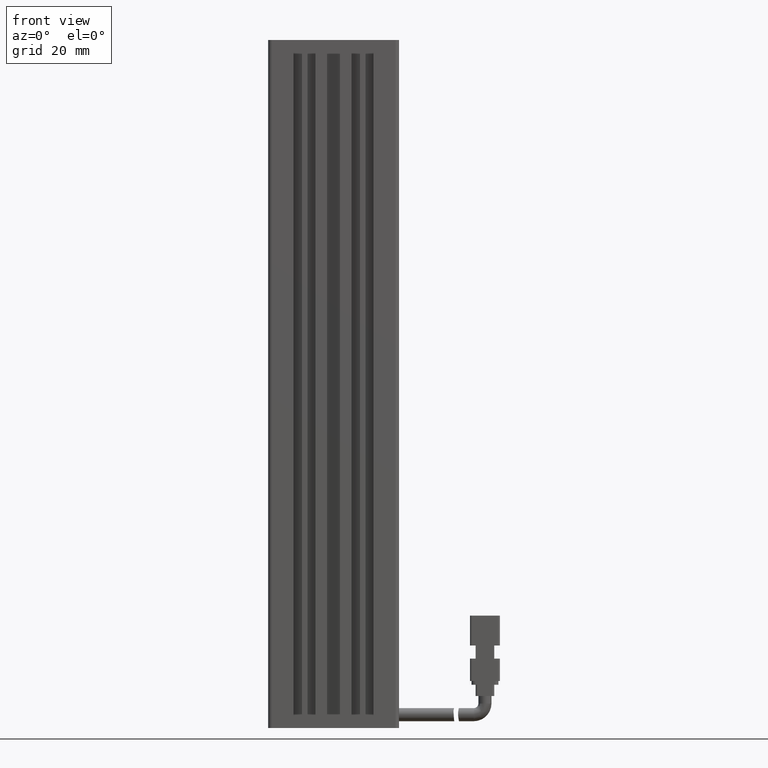
[diagram: clean part render]
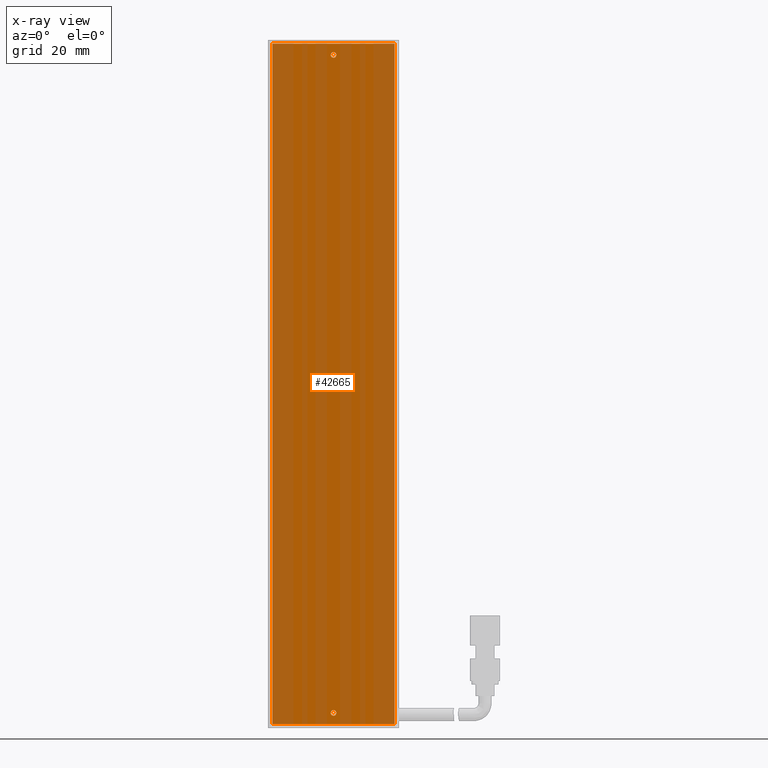
[diagram: x-ray — body ghosted, one internal face saturated and labeled with its STEP entity id]
A machine part, front view, then the same camera in x-ray: the body is ghosted and one INTERNAL B-rep face — a face not visible from any outside direction — is saturated and labeled: STEP entity #42665.
In plain terms, the highlighted planar face has unit normal (0, 1, 0).
Its self-contained STEP definition (entity closure, byte-faithful):
#1268 = ORIENTED_EDGE ( 'NONE', *, *, #16336, .F. ) ;
#2569 = ORIENTED_EDGE ( 'NONE', *, *, #61309, .F. ) ;
#2606 = FACE_OUTER_BOUND ( 'NONE', #52197, .T. ) ;
#2627 = EDGE_LOOP ( 'NONE', ( #71512, #5820 ) ) ;
#2944 = DIRECTION ( 'NONE',  ( 0.0000000000000000000, 1.000000000000000000, 0.0000000000000000000 ) ) ;
#3219 = DIRECTION ( 'NONE',  ( -1.387778780781445400E-016, 0.0000000000000000000, 1.000000000000000000 ) ) ;
#5435 = CARTESIAN_POINT ( 'NONE',  ( 40.92537974683542500, 32.09073232304837800, -26.24999999999996400 ) ) ;
#5774 = CARTESIAN_POINT ( 'NONE',  ( 57.27537974683544100, 32.09073232304837800, -23.99999999999996100 ) ) ;
#5820 = ORIENTED_EDGE ( 'NONE', *, *, #56900, .F. ) ;
#6190 = CARTESIAN_POINT ( 'NONE',  ( 40.92537974683543900, 32.09073232304837800, -203.7499999999999700 ) ) ;
#7118 = LINE ( 'NONE', #45780, #8049 ) ;
#8049 = VECTOR ( 'NONE', #76377, 1000.000000000000000 ) ;
#9324 = VECTOR ( 'NONE', #73184, 1000.000000000000000 ) ;
#10034 = EDGE_CURVE ( 'NONE', #13510, #33947, #42922, .T. ) ;
#11583 = VERTEX_POINT ( 'NONE', #6190 ) ;
#12018 = CARTESIAN_POINT ( 'NONE',  ( 24.57537974683543800, 32.09073232304837800, -205.9999999999999700 ) ) ;
#13510 = VERTEX_POINT ( 'NONE', #62176 ) ;
#14949 = DIRECTION ( 'NONE',  ( -0.0000000000000000000, -1.000000000000000000, -0.0000000000000000000 ) ) ;
#16098 = ORIENTED_EDGE ( 'NONE', *, *, #26931, .F. ) ;
#16336 = EDGE_CURVE ( 'NONE', #21347, #13510, #7118, .T. ) ;
#18615 = CARTESIAN_POINT ( 'NONE',  ( 40.92537974683542500, 32.09073232304837800, -26.99999999999996400 ) ) ;
#20123 = DIRECTION ( 'NONE',  ( -0.0000000000000000000, -1.000000000000000000, -0.0000000000000000000 ) ) ;
#21264 = PLANE ( 'NONE',  #28491 ) ;
#21347 = VERTEX_POINT ( 'NONE', #12018 ) ;
#24866 = DIRECTION ( 'NONE',  ( 1.000000000000000000, 0.0000000000000000000, 1.387778780781445400E-016 ) ) ;
#26593 = CARTESIAN_POINT ( 'NONE',  ( 40.92537974683543900, 32.09073232304837800, -202.2499999999999700 ) ) ;
#26849 = VERTEX_POINT ( 'NONE', #31491 ) ;
#26931 = EDGE_CURVE ( 'NONE', #73666, #11583, #33610, .T. ) ;
#27330 = CIRCLE ( 'NONE', #74202, 0.7500000000000006700 ) ;
#27673 = VECTOR ( 'NONE', #24866, 1000.000000000000000 ) ;
#28047 = AXIS2_PLACEMENT_3D ( 'NONE', #18615, #67264, #54517 ) ;
#28364 = CIRCLE ( 'NONE', #74949, 0.7500000000000006700 ) ;
#28491 = AXIS2_PLACEMENT_3D ( 'NONE', #32633, #2944, #3219 ) ;
#28780 = ORIENTED_EDGE ( 'NONE', *, *, #10034, .F. ) ;
#30221 = ORIENTED_EDGE ( 'NONE', *, *, #61300, .F. ) ;
#30335 = DIRECTION ( 'NONE',  ( 0.0000000000000000000, 0.0000000000000000000, 1.000000000000000000 ) ) ;
#31491 = CARTESIAN_POINT ( 'NONE',  ( 57.27537974683545500, 32.09073232304837800, -205.9999999999999700 ) ) ;
#32633 = CARTESIAN_POINT ( 'NONE',  ( 57.27537974683544100, 32.09073232304837800, -23.99999999999996100 ) ) ;
#32965 = CARTESIAN_POINT ( 'NONE',  ( 40.92537974683542500, 32.09073232304837800, -26.99999999999996400 ) ) ;
#33610 = CIRCLE ( 'NONE', #58176, 0.7500000000000006700 ) ;
#33947 = VERTEX_POINT ( 'NONE', #48419 ) ;
#34954 = VECTOR ( 'NONE', #41755, 1000.000000000000000 ) ;
#39093 = DIRECTION ( 'NONE',  ( 0.0000000000000000000, 0.0000000000000000000, 1.000000000000000000 ) ) ;
#41755 = DIRECTION ( 'NONE',  ( 1.387778780781445400E-016, -0.0000000000000000000, -1.000000000000000000 ) ) ;
#42665 = ADVANCED_FACE ( 'NONE', ( #2606, #47223, #72979 ), #21264, .F. ) ;
#42922 = LINE ( 'NONE', #5774, #27673 ) ;
#43091 = DIRECTION ( 'NONE',  ( -0.0000000000000000000, -1.000000000000000000, -0.0000000000000000000 ) ) ;
#43492 = LINE ( 'NONE', #61250, #9324 ) ;
#44282 = DIRECTION ( 'NONE',  ( 0.0000000000000000000, 0.0000000000000000000, 1.000000000000000000 ) ) ;
#45780 = CARTESIAN_POINT ( 'NONE',  ( 24.57537974683541300, 32.09073232304837800, -23.99999999999996400 ) ) ;
#47223 = FACE_BOUND ( 'NONE', #2627, .T. ) ;
#48238 = CARTESIAN_POINT ( 'NONE',  ( 40.92537974683542500, 32.09073232304837800, -27.74999999999996400 ) ) ;
#48419 = CARTESIAN_POINT ( 'NONE',  ( 57.27537974683544100, 32.09073232304837800, -23.99999999999996100 ) ) ;
#52197 = EDGE_LOOP ( 'NONE', ( #1268, #30221, #74215, #28780 ) ) ;
#53811 = CARTESIAN_POINT ( 'NONE',  ( 57.27537974683544100, 32.09073232304837800, -23.99999999999996100 ) ) ;
#54517 = DIRECTION ( 'NONE',  ( 0.0000000000000000000, 0.0000000000000000000, 1.000000000000000000 ) ) ;
#56575 = VERTEX_POINT ( 'NONE', #5435 ) ;
#56900 = EDGE_CURVE ( 'NONE', #60443, #56575, #28364, .T. ) ;
#58134 = EDGE_LOOP ( 'NONE', ( #16098, #2569 ) ) ;
#58176 = AXIS2_PLACEMENT_3D ( 'NONE', #62937, #20123, #44282 ) ;
#60443 = VERTEX_POINT ( 'NONE', #48238 ) ;
#61250 = CARTESIAN_POINT ( 'NONE',  ( 57.27537974683546900, 32.09073232304837800, -205.9999999999999700 ) ) ;
#61300 = EDGE_CURVE ( 'NONE', #26849, #21347, #43492, .T. ) ;
#61309 = EDGE_CURVE ( 'NONE', #11583, #73666, #27330, .T. ) ;
#62176 = CARTESIAN_POINT ( 'NONE',  ( 24.57537974683542700, 32.09073232304837800, -23.99999999999996400 ) ) ;
#62937 = CARTESIAN_POINT ( 'NONE',  ( 40.92537974683543900, 32.09073232304837800, -202.9999999999999700 ) ) ;
#63450 = EDGE_CURVE ( 'NONE', #56575, #60443, #64607, .T. ) ;
#64607 = CIRCLE ( 'NONE', #28047, 0.7500000000000006700 ) ;
#66382 = EDGE_CURVE ( 'NONE', #33947, #26849, #69252, .T. ) ;
#66815 = CARTESIAN_POINT ( 'NONE',  ( 40.92537974683543900, 32.09073232304837800, -202.9999999999999700 ) ) ;
#67264 = DIRECTION ( 'NONE',  ( -0.0000000000000000000, -1.000000000000000000, -0.0000000000000000000 ) ) ;
#69252 = LINE ( 'NONE', #53811, #34954 ) ;
#71512 = ORIENTED_EDGE ( 'NONE', *, *, #63450, .F. ) ;
#72979 = FACE_BOUND ( 'NONE', #58134, .T. ) ;
#73184 = DIRECTION ( 'NONE',  ( -1.000000000000000000, -0.0000000000000000000, -1.387778780781445400E-016 ) ) ;
#73666 = VERTEX_POINT ( 'NONE', #26593 ) ;
#74202 = AXIS2_PLACEMENT_3D ( 'NONE', #66815, #43091, #30335 ) ;
#74215 = ORIENTED_EDGE ( 'NONE', *, *, #66382, .F. ) ;
#74949 = AXIS2_PLACEMENT_3D ( 'NONE', #32965, #14949, #39093 ) ;
#76377 = DIRECTION ( 'NONE',  ( -1.387778780781445400E-016, 0.0000000000000000000, 1.000000000000000000 ) ) ;